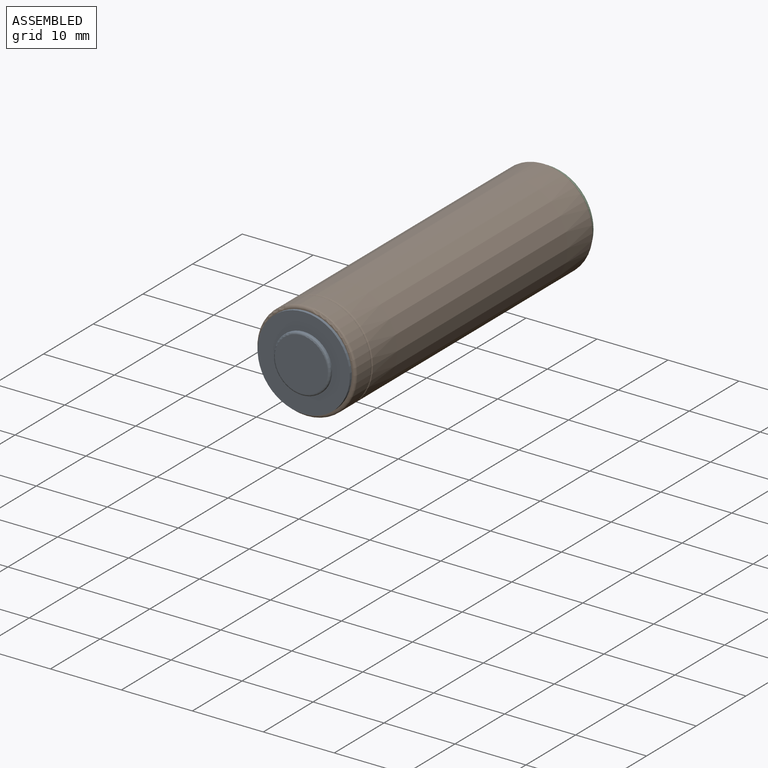
[diagram: assembled view]
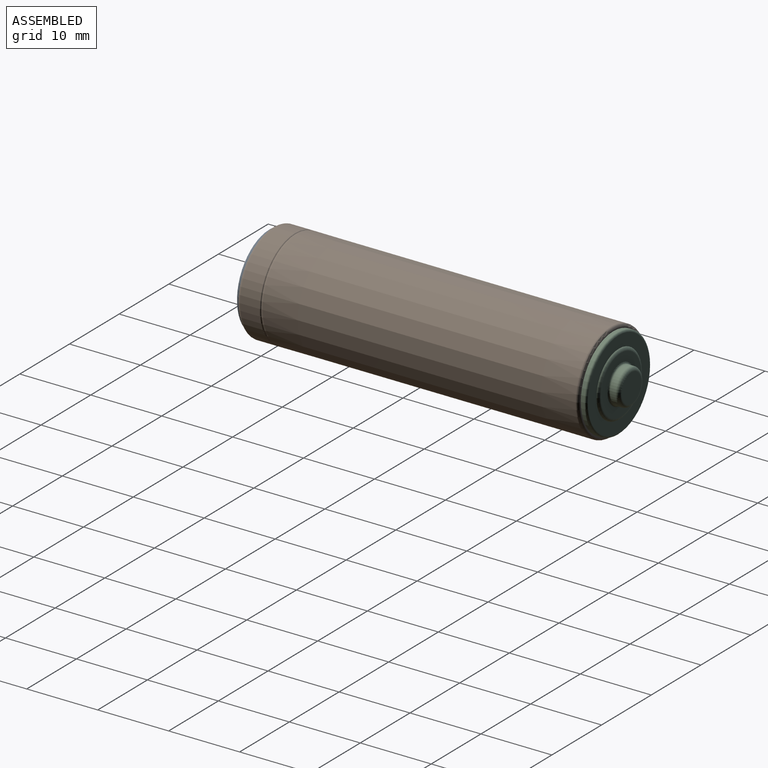
[diagram: assembled view, second angle]
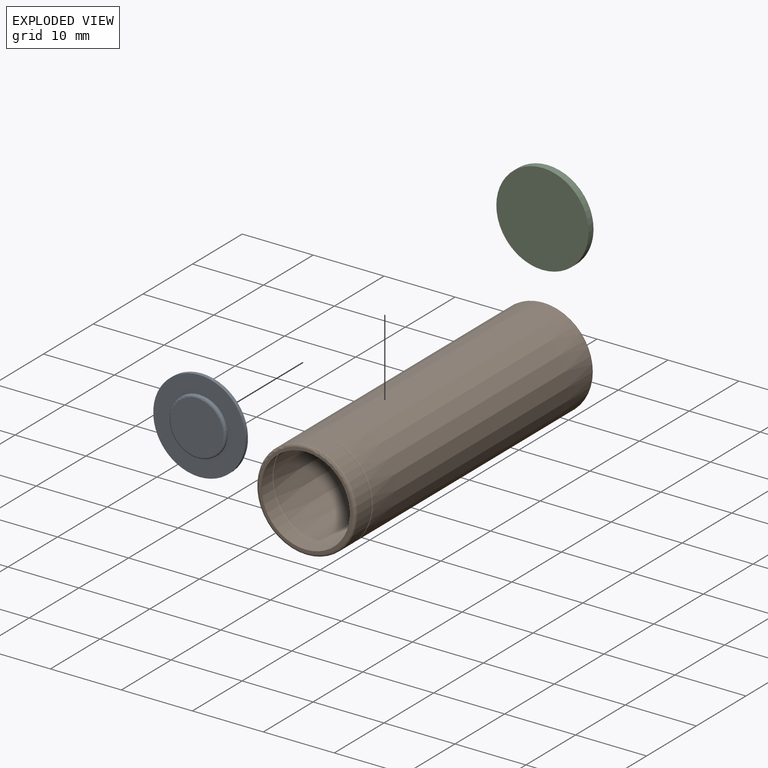
[diagram: exploded view]
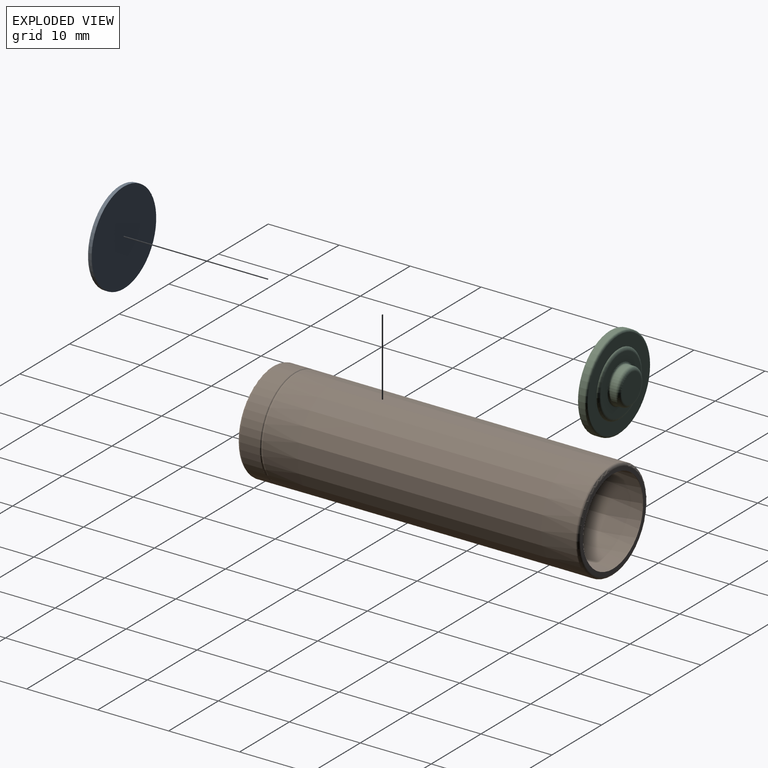
[diagram: exploded view, second angle]
ASSEMBLY  parts=3 mates=4
PART A: 6 faces, bbox 13x1x13 mm
  f0: plane 7.4x7.4mm, normal (0,-1,0), area 43mm2, adj f5
  f1: plane 13x13mm, normal (0,1,0), area 132.7mm2, adj f2
  f2: cylinder r=6.5mm len=13mm, axis (0,1,0), area 20.9mm2, adj f1,f3
  f3: plane 13x13mm, normal (0,-1,0), area 82.5mm2, adj f2,f4
  f4: cylinder r=4mm len=8mm, axis (0,1,0), area 4.7mm2, adj f3,f5
  f5: torus R=3.7mm, axis (0,-1,0), area 11.5mm2, adj f0,f4
PART B: 22 faces, bbox 15.2x48.1x15.2 mm
  f0: cylinder r=6.93mm len=13.86mm, axis (0,1,0), area 5.4mm2, adj f4,f5
  f1: plane 13.2x13.2mm, normal (0,-1,0), area 14.9mm2, adj f2,f20
  f2: torus R=6.6mm, axis (0,-1,0), area 27.1mm2, adj f1,f3
  f3: cylinder r=7mm len=14mm, axis (0,1,0), area 121.1mm2, adj f2,f4
  f4: torus R=6.83mm, axis (0,-1,0), area 7.2mm2, adj f0,f3
  f5: torus R=6.82mm, axis (0,-1,0), area 7.2mm2, adj f0,f6
  f6: cone r=7mm half-angle=0deg, axis (0,1,0), area 1939.5mm2, adj f5,f7
  f7: torus R=6.6mm, axis (0,-1,0), area 27.1mm2, adj f6,f8
  f8: plane 13.2x13.2mm, normal (0,1,0), area 21.8mm2, adj f7,f21
  f9: plane 13.2x13.2mm, normal (0,1,0), area 14.9mm2, adj f10,f20
  f10: torus R=6.6mm, axis (0,-1,0), area 20.1mm2, adj f9,f11
  f11: cylinder r=6.9mm len=13.8mm, axis (0,-1,0), area 119.4mm2, adj f10,f12
  f12: torus R=6.83mm, axis (0,-1,0), area 3.3mm2, adj f11,f13
  f13: torus R=6.9mm, axis (0,-1,0), area 3.3mm2, adj f12,f14
  f14: cylinder r=6.83mm len=13.66mm, axis (0,-1,0), area 6.4mm2, adj f13,f15
  f15: torus R=6.9mm, axis (0,-1,0), area 3.3mm2, adj f14,f16
  f16: torus R=6.82mm, axis (0,-1,0), area 3.3mm2, adj f15,f17
  f17: cone r=6.9mm half-angle=0deg, axis (0,1,0), area 1911.8mm2, adj f16,f18
  f18: torus R=6.6mm, axis (0,-1,0), area 20.1mm2, adj f17,f19
  f19: plane 13.2x13.2mm, normal (0,-1,0), area 21.8mm2, adj f18,f21
  f20: cylinder r=6.23mm len=12.46mm, axis (0,-1,0), area 3.9mm2, adj f1,f9
  f21: cylinder r=6.05mm len=12.11mm, axis (0,-1,0), area 3.8mm2, adj f8,f19
PART C: 10 faces, bbox 14.1x3x14.1 mm
  f0: plane 13x13mm, normal (0,-1,0), area 132.7mm2, adj f9
  f1: plane 4x4mm, normal (0,1,0), area 12.6mm2, adj f2
  f2: torus R=2mm, axis (0,-1,0), area 11.4mm2, adj f1,f3
  f3: cylinder r=2.5mm len=5mm, axis (0,1,0), area 11.8mm2, adj f2,f4
  f4: torus R=2.75mm, axis (0,-1,0), area 6.4mm2, adj f3,f5
  f5: plane 8.08x8.08mm, normal (0,1,0), area 27.6mm2, adj f4,f6
  f6: torus R=4.04mm, axis (0,-1,0), area 15.7mm2, adj f5,f7
  f7: plane 12.4x12.4mm, normal (0,1,0), area 57.1mm2, adj f6,f8
  f8: torus R=6.2mm, axis (0,-1,0), area 18.9mm2, adj f7,f9
  f9: cylinder r=6.5mm len=13mm, axis (0,1,0), area 36.8mm2, adj f0,f8
PLACE A rot(axis=(0,1,0),90deg) t=(17.42,-20.12,23.39)mm
PLACE B rot(axis=(0,1,0),90deg) t=(17.42,-19.53,23.39)mm
PLACE C rot(axis=(0,1,0),150deg) t=(17.42,-18.58,23.39)mm
MATE revolute C.f6 <-> B.f17  axis (0,-1,0) through (17.42,28.42,23.39)mm
MATE planar C.f6 <-> B.f17  axis (0,-1,0) through (17.42,28.42,23.39)mm
MATE cylindrical A.f5 <-> B.f3  axis (0,1,0) through (17.42,-19.12,23.39)mm
MATE planar A.f5 <-> B.f2  axis (0,1,0) through (17.42,-19.12,23.39)mm
